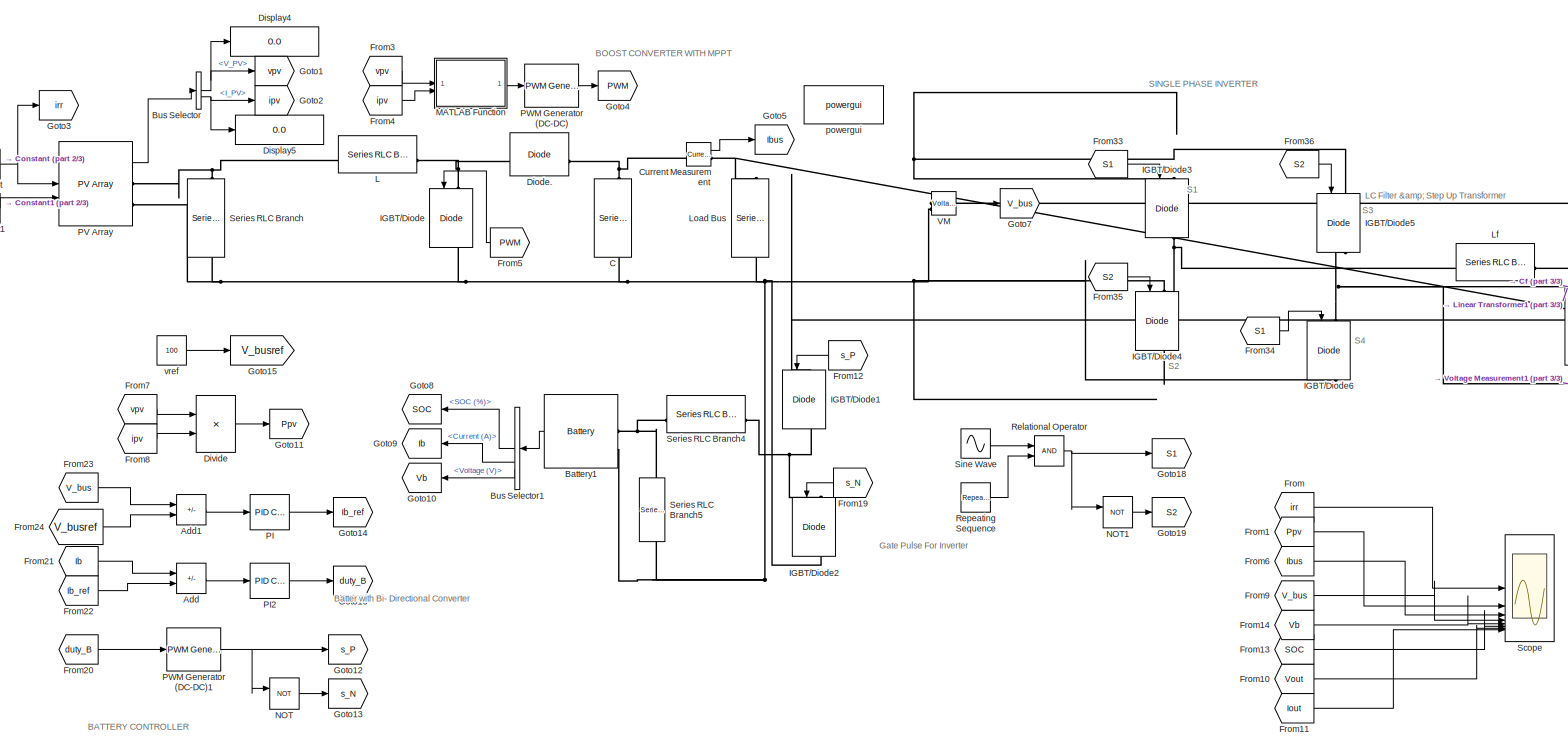
[diagram: root canvas - part 1/3, most of the canvas]
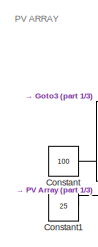
[diagram: root canvas - part 2/3, top left region]
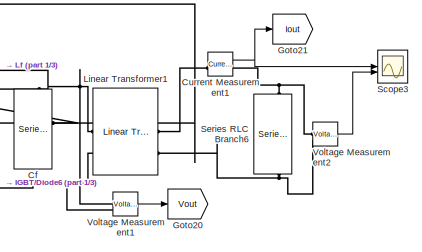
[diagram: root canvas - part 3/3, middle right region]
MODEL slx_3cdc03c41588
KIND model
CONFIG AbsTol = auto
CONFIG EnableMultiTasking = off
CONFIG FixedStep = 1e-6
CONFIG MaxStep = auto
CONFIG MinStep = auto
CONFIG RelTol = 1e-3
CONFIG SampleTimeConstraint = Unconstrained
CONFIG SolverName = ode3
CONFIG StartTime = 0.0
CONFIG StopTime = inf
BLOCK [Sum] Add
  IconShape = rectangular
  Inputs = +-
BLOCK [Sum] Add1
  IconShape = rectangular
  Inputs = +-
BLOCK [Reference] Battery1  REF=spsBatteryLib/Battery
  NameLocation = top
  SourceBlock = spsBatteryLib/Battery
  SourceType = Battery
BLOCK [BusSelector] Bus Selector
  OutputSignals = V_PV,I_PV
BLOCK [BusSelector] Bus Selector1
  OutputSignals = SOC (%),Current (A),Voltage (V)
BLOCK [Reference] C  REF=spsSeriesRLCBranchLib/Series RLC Branch
  LibrarySourceBlock = sps_lib/Passives/Series RLC Branch
  NameLocation = left
  SourceBlock = spsSeriesRLCBranchLib/Series RLC Branch
  SourceType = Series RLC Branch
BLOCK [Reference] Cf  REF=spsSeriesRLCBranchLib/Series RLC Branch
  LibrarySourceBlock = sps_lib/Passives/Series RLC Branch
  NameLocation = left
  SourceBlock = spsSeriesRLCBranchLib/Series RLC Branch
  SourceType = Series RLC Branch
BLOCK [Constant] Constant
  Value = 100
BLOCK [Constant] Constant1
  Value = 25
BLOCK [Reference] Current Measurement  REF=spsCurrentMeasurementLib/Current Measurement
  LibrarySourceBlock = sps_lib/Sensors and Measurements/Current Measurement
  SourceBlock = spsCurrentMeasurementLib/Current Measurement
  SourceType = Current Measurement
  UserDataPersistent = on
BLOCK [Reference] Current Measurement1  REF=spsCurrentMeasurementLib/Current Measurement
  LibrarySourceBlock = sps_lib/Sensors and Measurements/Current Measurement
  SourceBlock = spsCurrentMeasurementLib/Current Measurement
  SourceType = Current Measurement
  UserDataPersistent = on
BLOCK [Reference] Diode.  REF=spsDiodeLib/Diode
  LibrarySourceBlock = sps_lib/Power Electronics/Diode
  SourceBlock = spsDiodeLib/Diode
  SourceType = Diode
BLOCK [Display] Display4
  Decimation = 1
BLOCK [Display] Display5
  Decimation = 1
BLOCK [Product] Divide
  Inputs = **
BLOCK [From] From
  GotoTag = irr
BLOCK [From] From1
  GotoTag = Ppv
BLOCK [From] From10
  GotoTag = Vout
BLOCK [From] From11
  GotoTag = Iout
BLOCK [From] From12
  GotoTag = s_P
BLOCK [From] From13
  GotoTag = SOC
  NameLocation = top
BLOCK [From] From14
  GotoTag = Vb
  NameLocation = top
BLOCK [From] From19
  GotoTag = s_N
BLOCK [From] From20
  GotoTag = duty_B
  NameLocation = top
  TagVisibility = global
BLOCK [From] From21
  GotoTag = Ib
BLOCK [From] From22
  GotoTag = Ib_ref
BLOCK [From] From23
  GotoTag = V_bus
  TagVisibility = global
BLOCK [From] From24
  GotoTag = V_busref
BLOCK [From] From3
  GotoTag = vpv
BLOCK [From] From33
  GotoTag = S1
BLOCK [From] From34
  GotoTag = S1
BLOCK [From] From35
  GotoTag = S2
BLOCK [From] From36
  GotoTag = S2
BLOCK [From] From4
  GotoTag = ipv
BLOCK [From] From5
  GotoTag = PWM
  NameLocation = top
BLOCK [From] From6
  GotoTag = Ibus
BLOCK [From] From7
  GotoTag = vpv
BLOCK [From] From8
  GotoTag = ipv
BLOCK [From] From9
  GotoTag = V_bus
  TagVisibility = global
BLOCK [Goto] Goto1
  GotoTag = vpv
BLOCK [Goto] Goto10
  GotoTag = Vb
BLOCK [Goto] Goto11
  GotoTag = Ppv
BLOCK [Goto] Goto12
  GotoTag = s_P
BLOCK [Goto] Goto13
  GotoTag = s_N
BLOCK [Goto] Goto14
  GotoTag = Ib_ref
BLOCK [Goto] Goto15
  GotoTag = V_busref
BLOCK [Goto] Goto16
  GotoTag = duty_B
  TagVisibility = global
BLOCK [Goto] Goto18
  GotoTag = S1
BLOCK [Goto] Goto19
  GotoTag = S2
BLOCK [Goto] Goto2
  GotoTag = ipv
BLOCK [Goto] Goto20
  GotoTag = Vout
BLOCK [Goto] Goto21
  GotoTag = Iout
BLOCK [Goto] Goto3
  GotoTag = irr
BLOCK [Goto] Goto4
  GotoTag = PWM
BLOCK [Goto] Goto5
  GotoTag = Ibus
BLOCK [Goto] Goto7
  GotoTag = V_bus
  TagVisibility = global
BLOCK [Goto] Goto8
  GotoTag = SOC
BLOCK [Goto] Goto9
  GotoTag = Ib
BLOCK [Reference] IGBT//Diode  REF=spsIGBTDiodeLib/IGBT//Diode
  LibrarySourceBlock = sps_lib/Power Electronics/IGBT//Diode
  NameLocation = left
  SourceBlock = spsIGBTDiodeLib/IGBT//Diode
  SourceType = IGBT/Diode
BLOCK [Reference] IGBT//Diode1  REF=spsIGBTDiodeLib/IGBT//Diode
  NameLocation = left
  SourceBlock = spsIGBTDiodeLib/IGBT//Diode
  SourceType = IGBT/Diode
BLOCK [Reference] IGBT//Diode2  REF=spsIGBTDiodeLib/IGBT//Diode
  NameLocation = left
  SourceBlock = spsIGBTDiodeLib/IGBT//Diode
  SourceType = IGBT/Diode
BLOCK [Reference] IGBT//Diode3  REF=spsIGBTDiodeLib/IGBT//Diode
  NameLocation = left
  SourceBlock = spsIGBTDiodeLib/IGBT//Diode
  SourceType = IGBT/Diode
BLOCK [Reference] IGBT//Diode4  REF=spsIGBTDiodeLib/IGBT//Diode
  NameLocation = left
  SourceBlock = spsIGBTDiodeLib/IGBT//Diode
  SourceType = IGBT/Diode
BLOCK [Reference] IGBT//Diode5  REF=spsIGBTDiodeLib/IGBT//Diode
  NameLocation = left
  SourceBlock = spsIGBTDiodeLib/IGBT//Diode
  SourceType = IGBT/Diode
BLOCK [Reference] IGBT//Diode6  REF=spsIGBTDiodeLib/IGBT//Diode
  NameLocation = left
  SourceBlock = spsIGBTDiodeLib/IGBT//Diode
  SourceType = IGBT/Diode
BLOCK [Reference] L  REF=spsSeriesRLCBranchLib/Series RLC Branch
  LibrarySourceBlock = sps_lib/Passives/Series RLC Branch
  NameLocation = top
  SourceBlock = spsSeriesRLCBranchLib/Series RLC Branch
  SourceType = Series RLC Branch
BLOCK [Reference] Lf  REF=spsSeriesRLCBranchLib/Series RLC Branch
  LibrarySourceBlock = sps_lib/Passives/Series RLC Branch
  SourceBlock = spsSeriesRLCBranchLib/Series RLC Branch
  SourceType = Series RLC Branch
BLOCK [Reference] Linear Transformer1  REF=spsLinearTransformerLib/Linear Transformer
  LibrarySourceBlock = sps_lib/Power Grid Elements/Linear Transformer
  SourceBlock = spsLinearTransformerLib/Linear Transformer
  SourceType = Linear Transformer
BLOCK [Reference] Load Bus  REF=spsSeriesRLCBranchLib/Series RLC Branch
  LibrarySourceBlock = sps_lib/Passives/Series RLC Branch
  NameLocation = left
  SourceBlock = spsSeriesRLCBranchLib/Series RLC Branch
  SourceType = Series RLC Branch
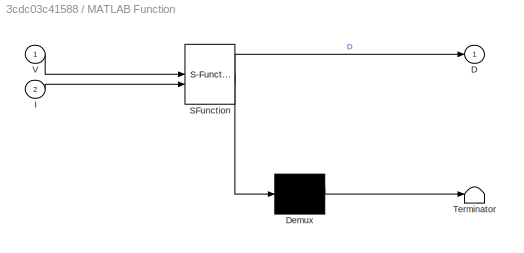
BLOCK [SubSystem] MATLAB Function
  ErrorFcn = Stateflow.Translate.translate
  LibrarySourceBlock = simulink/User-Defined\nFunctions/MATLAB Function
  PermitHierarchicalResolution = ExplicitOnly
  SFBlockType = MATLAB Function
  TreatAsAtomicUnit = on
BLOCK [Demux] MATLAB Function/ Demux 
  Outputs = 1
BLOCK [S-Function] MATLAB Function/ SFunction 
  EnableBusSupport = on
  FunctionName = sf_sfun
  PortCounts = [2 2]
  SFcnIsStateOwnerBlock = off
  SFunctionDeploymentMode = off
  Tag = Stateflow S-Function 2
BLOCK [Terminator] MATLAB Function/ Terminator 
BLOCK [Outport] MATLAB Function/D
BLOCK [Inport] MATLAB Function/I
  Port = 2
BLOCK [Inport] MATLAB Function/V
BLOCK [Logic] NOT
  AllPortsSameDT = off
  IconShape = distinctive
  Operator = NOT
  OutDataTypeStr = boolean
BLOCK [Logic] NOT1
  AllPortsSameDT = off
  IconShape = distinctive
  Operator = NOT
  OutDataTypeStr = boolean
BLOCK [Reference] PI  REF=slpidlib/PID Controller
  SourceBlock = slpidlib/PID Controller
  SourceType = PID 1dof
BLOCK [Reference] PI2  REF=slpidlib/PID Controller
  SourceBlock = slpidlib/PID Controller
  SourceType = PID 1dof
BLOCK [Reference] PV Array  REF=spsPVArrayLib/PV Array
  LibrarySourceBlock = sps_lib/Sources/PV Array
  SourceBlock = spsPVArrayLib/PV Array
  SourceType = PV array
BLOCK [Reference] PWM Generator (DC-DC)  REF=spsPWMGeneratorDCDCLib/PWM Generator
(DC-DC)
  LibrarySourceBlock = sps_lib/Power Electronics/Power Electronics Control/PWM Generator\n(DC-DC)
  SourceBlock = spsPWMGeneratorDCDCLib/PWM Generator\n(DC-DC)
  SourceType = PWM Generator (DC-DC)
BLOCK [Reference] PWM Generator (DC-DC)1  REF=spsPWMGeneratorDCDCLib/PWM Generator
(DC-DC)
  SourceBlock = spsPWMGeneratorDCDCLib/PWM Generator\n(DC-DC)
  SourceType = PWM Generator (DC-DC)
BLOCK [RelationalOperator] Relational Operator
  InputSameDT = off
  OutDataTypeStr = boolean
  RndMeth = Simplest
BLOCK [Reference] Repeating Sequence  REF=simulink/Sources/Repeating
Sequence
  SourceBlock = simulink/Sources/Repeating\nSequence
  SourceType = Repeating table
BLOCK [Scope] Scope
  Floating = off
  NumInputPorts = 8
  ScopeSpecificationString = Simulink.scopes.TimeScopeBlockCfg('CurrentConfiguration', extmgr.ConfigurationSet(extmgr.Configuration('Core','General UI',true,'FigureColor',[1 1 1]),extmgr.Configuration('Core','Source UI',true),extmgr.Configuration('Sources','WiredSimulink',true),extmgr.Configuration('Visuals','Time Domain',true,'SerializedDisplays',{struct('MinYLimReal','-12.5','MaxYLimReal','1112.5','YLabelReal','irr','MinYLi...<+13646ch>
BLOCK [Scope] Scope3
  Floating = off
  NumInputPorts = 2
  ScopeSpecificationString = Simulink.scopes.TimeScopeBlockCfg('CurrentConfiguration', extmgr.ConfigurationSet(extmgr.Configuration('Core','General UI',true,'FigureColor',[1 1 1]),extmgr.Configuration('Core','Source UI',true),extmgr.Configuration('Sources','WiredSimulink',true,'DataLogging',true,'DataLoggingVariableName','Output1'),extmgr.Configuration('Visuals','Time Domain',true,'SerializedDisplays',{struct('MinYLimReal','-...<+2291ch>
BLOCK [Reference] Series RLC Branch  REF=spsSeriesRLCBranchLib/Series RLC Branch
  LibrarySourceBlock = sps_lib/Passives/Series RLC Branch
  NameLocation = left
  SourceBlock = spsSeriesRLCBranchLib/Series RLC Branch
  SourceType = Series RLC Branch
BLOCK [Reference] Series RLC Branch4  REF=spsSeriesRLCBranchLib/Series RLC Branch
  SourceBlock = spsSeriesRLCBranchLib/Series RLC Branch
  SourceType = Series RLC Branch
BLOCK [Reference] Series RLC Branch5  REF=spsSeriesRLCBranchLib/Series RLC Branch
  NameLocation = top
  SourceBlock = spsSeriesRLCBranchLib/Series RLC Branch
  SourceType = Series RLC Branch
BLOCK [Reference] Series RLC Branch6  REF=spsSeriesRLCBranchLib/Series RLC Branch
  LibrarySourceBlock = sps_lib/Passives/Series RLC Branch
  NameLocation = left
  SourceBlock = spsSeriesRLCBranchLib/Series RLC Branch
  SourceType = Series RLC Branch
BLOCK [Sin] Sine Wave
  Amplitude = 0.45
  Frequency = 2*pi*50
  SampleTime = 0
BLOCK [Reference] VM  REF=spsVoltageMeasurementLib/Voltage Measurement
  SourceBlock = spsVoltageMeasurementLib/Voltage Measurement
  SourceType = Voltage Measurement
  UserDataPersistent = on
BLOCK [Reference] Voltage Measurement1  REF=spsVoltageMeasurementLib/Voltage Measurement
  LibrarySourceBlock = sps_lib/Sensors and Measurements/Voltage Measurement
  SourceBlock = spsVoltageMeasurementLib/Voltage Measurement
  SourceType = Voltage Measurement
  UserDataPersistent = on
BLOCK [Reference] Voltage Measurement2  REF=spsVoltageMeasurementLib/Voltage Measurement
  LibrarySourceBlock = sps_lib/Sensors and Measurements/Voltage Measurement
  SourceBlock = spsVoltageMeasurementLib/Voltage Measurement
  SourceType = Voltage Measurement
  UserDataPersistent = on
BLOCK [Reference] powergui  REF=spspowerguiLib/powergui
  LibrarySourceBlock = sps_lib/powergui
  Priority = 1
  SourceBlock = spspowerguiLib/powergui
  SourceType = PSB option menu block
BLOCK [Constant] vref
  Value = 100
ANNOTATION (root): Gate Pulse For Inverter
ANNOTATION (root): BATTERY CONTROLLER
ANNOTATION (root): BOOST CONVERTER WITH MPPT
ANNOTATION (root): PV ARRAY
ANNOTATION (root): SINGLE PHASE INVERTER
ANNOTATION (root): Batter with Bi- Directional Converter
ANNOTATION (root): LC Filter & Step Up Transformer
ANNOTATION (root): S1
ANNOTATION (root): S2
ANNOTATION (root): S3
ANNOTATION (root): S4
LINE Add1:1 -> PI:1
LINE Add:1 -> PI2:1
LINE Battery1:1 -> Bus Selector1:1
LINE Bus Selector1:1 -> Goto8:1
LINE Bus Selector1:2 -> Goto9:1
LINE Bus Selector1:3 -> Goto10:1
NET Bus Selector:1 -> Display4:1, Goto1:1
NET Bus Selector:2 -> Display5:1, Goto2:1
LINE Constant1:1 -> PV Array:2
NET Constant:1 -> Goto3:1, PV Array:1
NET Current Measurement1:1 -> Goto21:1, Scope3:1
LINE Current Measurement:1 -> Goto5:1
LINE Divide:1 -> Goto11:1
LINE From10:1 -> Scope:7
LINE From11:1 -> Scope:8
LINE From12:1 -> IGBT//Diode1:1
LINE From13:1 -> Scope:6
LINE From14:1 -> Scope:5
LINE From19:1 -> IGBT//Diode2:1
LINE From1:1 -> Scope:2
LINE From20:1 -> PWM Generator (DC-DC)1:1
LINE From21:1 -> Add:1
LINE From22:1 -> Add:2
LINE From23:1 -> Add1:1
LINE From24:1 -> Add1:2
LINE From33:1 -> IGBT//Diode3:1
LINE From34:1 -> IGBT//Diode6:1
LINE From35:1 -> IGBT//Diode4:1
LINE From36:1 -> IGBT//Diode5:1
LINE From3:1 -> MATLAB Function:1
LINE From4:1 -> MATLAB Function:2
LINE From5:1 -> IGBT//Diode:1
LINE From6:1 -> Scope:3
LINE From7:1 -> Divide:1
LINE From8:1 -> Divide:2
LINE From9:1 -> Scope:4
LINE From:1 -> Scope:1
LINE MATLAB Function:1 -> PWM Generator (DC-DC):1
LINE NOT1:1 -> Goto19:1
LINE NOT:1 -> Goto13:1
LINE PI2:1 -> Goto16:1
LINE PI:1 -> Goto14:1
LINE PV Array:1 -> Bus Selector:1
NET PWM Generator (DC-DC)1:1 -> Goto12:1, NOT:1
LINE PWM Generator (DC-DC):1 -> Goto4:1
NET Relational Operator:1 -> Goto18:1, NOT1:1
LINE Repeating Sequence:1 -> Relational Operator:2
LINE Sine Wave:1 -> Relational Operator:1
LINE VM:1 -> Goto7:1
LINE Voltage Measurement1:1 -> Goto20:1
LINE Voltage Measurement2:1 -> Scope3:2
LINE vref:1 -> Goto15:1
PNET net1: Battery1:LConn1 -- Series RLC Branch4:RConn1 -- Series RLC Branch5:LConn1
PNET net2: Battery1:LConn2 -- C:RConn1 -- IGBT//Diode2:RConn1 -- IGBT//Diode4:RConn1 -- IGBT//Diode6:RConn1 -- IGBT//Diode:RConn1 -- Load Bus:RConn1 -- PV Array:RConn2 -- Series RLC Branch5:RConn1 -- Series RLC Branch:RConn1 -- VM:LConn2
PNET net3: C:LConn1 -- Current Measurement:LConn1 -- Diode.:RConn1
PNET net4: Cf:LConn1 -- Lf:RConn1 -- Linear Transformer1:LConn1 -- Voltage Measurement1:LConn1
PNET net5: Cf:RConn1 -- IGBT//Diode5:RConn1 -- IGBT//Diode6:LConn1 -- Linear Transformer1:LConn2 -- Voltage Measurement1:LConn2
PLINE Current Measurement1:LConn1 -- Linear Transformer1:RConn1
PNET net6: Current Measurement1:RConn1 -- Series RLC Branch6:LConn1 -- Voltage Measurement2:LConn1
PNET net7: Current Measurement:RConn1 -- IGBT//Diode1:LConn1 -- IGBT//Diode3:LConn1 -- IGBT//Diode5:LConn1 -- Load Bus:LConn1 -- VM:LConn1
PNET net8: Diode.:LConn1 -- IGBT//Diode:LConn1 -- L:LConn1
PNET net9: IGBT//Diode1:RConn1 -- IGBT//Diode2:LConn1 -- Series RLC Branch4:LConn1
PNET net10: IGBT//Diode3:RConn1 -- IGBT//Diode4:LConn1 -- Lf:LConn1
PNET net11: L:RConn1 -- PV Array:RConn1 -- Series RLC Branch:LConn1
PNET net12: Linear Transformer1:RConn2 -- Series RLC Branch6:RConn1 -- Voltage Measurement2:LConn2
note: NET lines group one-source signal fan-out (src -> all destinations, sorted); 1:1 wires keep LINE; PNET lines group multi-terminal physical nets as a canonical sorted terminal list (undirected conserving connections); 2-terminal nets keep the pairwise PLINE form
CHART MATLAB Function states=1 transitions=1
  STATE_LABEL 'eML_blk_kernel()'
  STATE_LABEL "SCRIPT:\nfunction D =DutyRation(V, I)\n\nDmax = 0.95;\nDmin=0;\nDinit=0.95;\ndeltaD=0.0001;\npersistent Vold Pold Dold;\n\ndataType = 'double';\n\nif isempty(Vold)\n    Vold=0;\n    Pold=0;\n    Dold=Dinit;\nend\n\nP=V*I;\ndV=V-Vold;\ndP=P-Pold;\n\nif dP ~= 0\n    if dP<0\n        if dV<0\n            D = Dold-deltaD;\n        else\n            D = Dold + deltaD;\n        end\n    else\n        if dV<0\n            D= Dold + d...<+154ch>"
CHART  states=0 transitions=0
